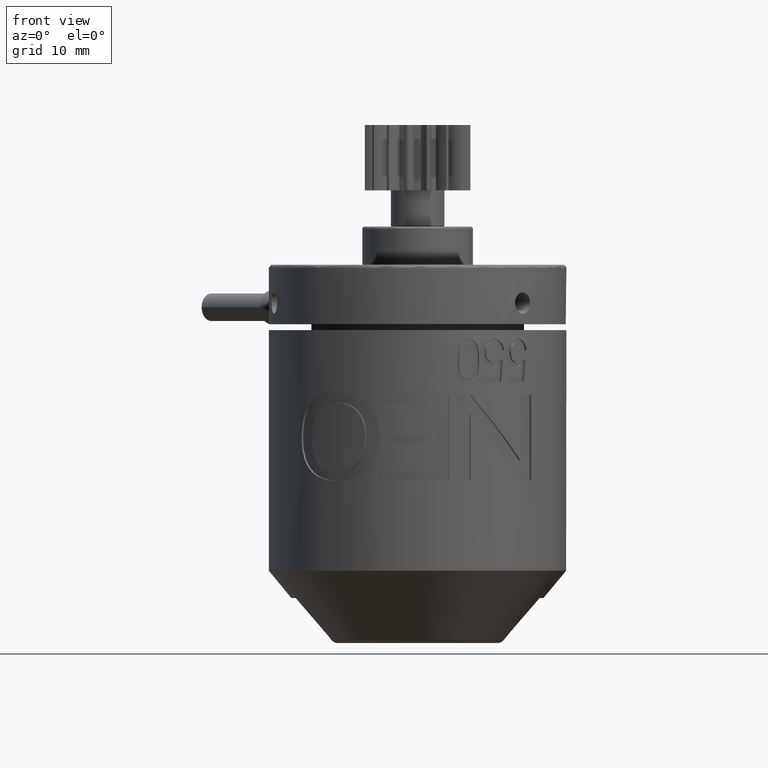
[diagram: clean part render]
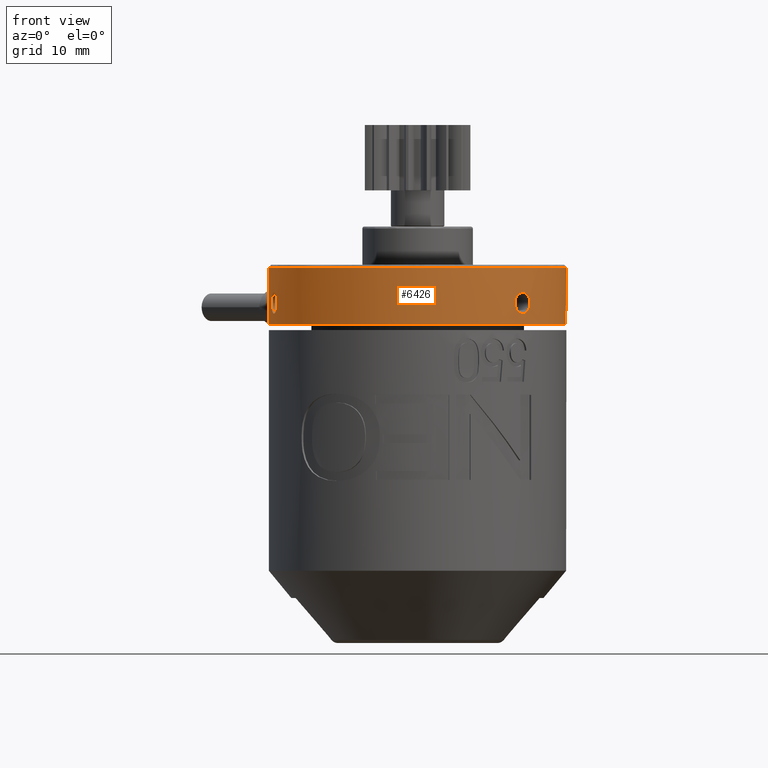
[diagram: same view with one face highlighted and labeled with its STEP entity id]
A machine part, front view. The second image highlights one B-rep face of the part: STEP entity #6426.
In plain terms, the highlighted cylindrical surface (bore or boss wall) has radius 17.5 mm, axis along (-0, 0, -1).
Its self-contained STEP definition (entity closure, byte-faithful):
#69 = AXIS2_PLACEMENT_3D ( 'NONE', #10159, #16792, #1874 ) ;
#143 = CARTESIAN_POINT ( 'NONE',  ( 29.75967155155019839, -9.239077156569431182, -5.750112523531559994 ) ) ;
#194 = AXIS2_PLACEMENT_3D ( 'NONE', #14608, #21219, #6301 ) ;
#249 = CARTESIAN_POINT ( 'NONE',  ( 29.42191124148287784, -9.561739241251174803, -3.407706567902796913 ) ) ;
#534 = CARTESIAN_POINT ( 'NONE',  ( 10.90535322740708857, 19.46021021049977762, -3.473940224032347590 ) ) ;
#576 = AXIS2_PLACEMENT_3D ( 'NONE', #2335, #9005, #15642 ) ;
#581 = EDGE_CURVE ( 'NONE', #11204, #11204, #20568, .T. ) ;
#648 = CARTESIAN_POINT ( 'NONE',  ( 11.40230905768526704, 19.65339918296087163, -5.907563715008980587 ) ) ;
#702 = CARTESIAN_POINT ( 'NONE',  ( 20.96575998387172390, 20.40349705254295998, -5.130010636494318987 ) ) ;
#743 = CARTESIAN_POINT ( 'NONE',  ( 1.042443931795246526, 9.199771602442933016, -5.541207937972690623 ) ) ;
#817 = CARTESIAN_POINT ( 'NONE',  ( 23.22517167469573707, 19.78700121833647430, -4.665199631201637054 ) ) ;
#858 = CARTESIAN_POINT ( 'NONE',  ( 1.420500750574180238, 10.15747075664702948, -3.254995811129300698 ) ) ;
#907 = CARTESIAN_POINT ( 'NONE',  ( 0.3647187673251278128, -0.3060938362238062593, -5.267916720171465172 ) ) ;
#920 = CARTESIAN_POINT ( 'NONE',  ( 21.05609471279163003, 20.38528105043006988, -3.732082164241278477 ) ) ;
#1019 = CARTESIAN_POINT ( 'NONE',  ( 0.6829943015972657072, -1.593681151173534927, -3.282215623313603725 ) ) ;
#1331 = ORIENTED_EDGE ( 'NONE', *, *, #11722, .F. ) ;
#1758 = EDGE_CURVE ( 'NONE', #7910, #7910, #4920, .T. ) ;
#1770 = CARTESIAN_POINT ( 'NONE',  ( 30.31173971722515503, -8.671910731905871472, -5.592293059963782120 ) ) ;
#1863 = CARTESIAN_POINT ( 'NONE',  ( 29.07818532565994829, -9.872483681772864728, -3.869988015525669844 ) ) ;
#1874 = DIRECTION ( 'NONE',  ( -1.000000000000000000, -2.230358754827323618E-16, 0.0000000000000000000 ) ) ;
#1973 = CARTESIAN_POINT ( 'NONE',  ( 30.72664451281534781, -8.208877559849039329, -4.334797721683901095 ) ) ;
#2154 = CARTESIAN_POINT ( 'NONE',  ( 10.47782063515877304, 19.27982430303985595, -3.194253470927208571 ) ) ;
#2195 = FACE_BOUND ( 'NONE', #21114, .T. ) ;
#2257 = CARTESIAN_POINT ( 'NONE',  ( 11.60911796059199474, 19.72872610522296810, -5.267142602745238378 ) ) ;
#2314 = CARTESIAN_POINT ( 'NONE',  ( 20.81035680927688247, 20.43404893484868268, -4.499999999999485745 ) ) ;
#2335 = CARTESIAN_POINT ( 'NONE',  ( 17.49999999999999645, 3.249999999999994227, -2.999999999999999112 ) ) ;
#2360 = CARTESIAN_POINT ( 'NONE',  ( 1.122913862445764410, 9.418283475755121259, -6.031102598711562734 ) ) ;
#2365 = CARTESIAN_POINT ( 'NONE',  ( 9.887472395253810831, 19.00808461894056478, -6.987188363550425052 ) ) ;
#2418 = CARTESIAN_POINT ( 'NONE',  ( 22.98797301592620812, 19.86763576659911124, -5.267916720171466061 ) ) ;
#2460 = CARTESIAN_POINT ( 'NONE',  ( 1.213352521166271014, 9.653553268101068952, -3.657715121989435936 ) ) ;
#2499 = EDGE_CURVE ( 'NONE', #21525, #7923, #17561, .T. ) ;
#2513 = CARTESIAN_POINT ( 'NONE',  ( 0.5142051793633858336, -0.9637515487206038678, -5.717784300675830877 ) ) ;
#2519 = CARTESIAN_POINT ( 'NONE',  ( 0.9629986779076183945, -2.475171374999612706, -4.499999999999487521 ) ) ;
#2527 = CARTESIAN_POINT ( 'NONE',  ( 21.71375192445307434, 20.23579472599121232, -3.282215623313604613 ) ) ;
#2614 = CARTESIAN_POINT ( 'NONE',  ( 0.5136416937290486651, -0.9614441141478743402, -3.282986355613572105 ) ) ;
#3333 = VERTEX_POINT ( 'NONE', #9990 ) ;
#3395 = CARTESIAN_POINT ( 'NONE',  ( 30.62248421930776132, -8.328184715724011866, -5.130010636494315435 ) ) ;
#3451 = EDGE_CURVE ( 'NONE', #11860, #4805, #12776, .T. ) ;
#3491 = CARTESIAN_POINT ( 'NONE',  ( 28.95887732014566041, -9.976644720481894879, -4.665199631201637054 ) ) ;
#3598 = CARTESIAN_POINT ( 'NONE',  ( 30.56154133426267805, -8.397308884756181868, -3.732082164241277589 ) ) ;
#3783 = CARTESIAN_POINT ( 'NONE',  ( 9.641747173435119223, 18.88642742169018618, -3.000000000488677543 ) ) ;
#3822 = FACE_OUTER_BOUND ( 'NONE', #14099, .T. ) ;
#3888 = CARTESIAN_POINT ( 'NONE',  ( 11.60774203024416451, 19.72823503525749445, -4.723569708079573992 ) ) ;
#3932 = ORIENTED_EDGE ( 'NONE', *, *, #2499, .T. ) ;
#3983 = CARTESIAN_POINT ( 'NONE',  ( 1.289789790431496774, 9.844646774882695794, -6.526059776696692794 ) ) ;
#3989 = CARTESIAN_POINT ( 'NONE',  ( 10.47869208172873101, 19.28020089345562837, -6.805277727392644138 ) ) ;
#4038 = DIRECTION ( 'NONE',  ( -1.000000000000000000, -2.230358754827323618E-16, 0.0000000000000000000 ) ) ;
#4051 = CARTESIAN_POINT ( 'NONE',  ( 22.34368152389008344, 20.06700559250177562, -5.717784300675828213 ) ) ;
#4097 = CARTESIAN_POINT ( 'NONE',  ( 1.096600817821198781, 9.347690944418802772, -4.092436284583154560 ) ) ;
#4143 = CARTESIAN_POINT ( 'NONE',  ( 0.6836602393483403040, -1.595961941223115632, -5.717013564756991073 ) ) ;
#4155 = CARTESIAN_POINT ( 'NONE',  ( 22.34596156366481523, 20.06633986808943604, -3.282986355613572105 ) ) ;
#4249 = CARTESIAN_POINT ( 'NONE',  ( 0.3649068953869024634, -0.3069517444518011784, -3.731365305807282429 ) ) ;
#4351 = CARTESIAN_POINT ( 'NONE',  ( 0.9629986779076183945, -2.475171374999612706, -4.499999999999487521 ) ) ;
#4512 = CARTESIAN_POINT ( 'NONE',  ( 9.641747173435119223, 18.88642742169018618, -3.000000000488677543 ) ) ;
#4805 = VERTEX_POINT ( 'NONE', #18336 ) ;
#4920 = CIRCLE ( 'NONE', #69, 17.49999999999999645 ) ;
#5015 = CARTESIAN_POINT ( 'NONE',  ( 30.72664451281538334, -8.208877559848986039, -4.499999999999485745 ) ) ;
#5078 = EDGE_CURVE ( 'NONE', #6369, #6369, #7901, .T. ) ;
#5130 = CARTESIAN_POINT ( 'NONE',  ( 29.14730821674856642, -9.811541930375215159, -5.267916720171467837 ) ) ;
#5222 = CARTESIAN_POINT ( 'NONE',  ( 30.10325377394955737, -8.892113574817614108, -3.282215623313603725 ) ) ;
#5513 = CARTESIAN_POINT ( 'NONE',  ( 11.39936441152563695, 19.65230500521685286, -4.086915064967548084 ) ) ;
#5617 = CARTESIAN_POINT ( 'NONE',  ( 1.470175698032514688, 10.27217936729020664, -6.805746529947040990 ) ) ;
#5622 = CARTESIAN_POINT ( 'NONE',  ( 10.90724549344755623, 19.46098296136088024, -6.524523823626787511 ) ) ;
#5677 = CARTESIAN_POINT ( 'NONE',  ( 21.71144373345390832, 20.23635840200625324, -5.717013564756993738 ) ) ;
#5721 = CARTESIAN_POINT ( 'NONE',  ( 1.021273895506597862, 9.140882041448890050, -4.732857397143126477 ) ) ;
#5778 = CARTESIAN_POINT ( 'NONE',  ( 0.8820984764428116964, -2.237136810574798407, -5.268633604896452383 ) ) ;
#5793 = CARTESIAN_POINT ( 'NONE',  ( 22.98713598157576143, 19.86790179703244874, -3.731365305807285537 ) ) ;
#5838 = CARTESIAN_POINT ( 'NONE',  ( 1.741915382336845397, 10.86252760739150780, -3.012811635482394834 ) ) ;
#5879 = CARTESIAN_POINT ( 'NONE',  ( 0.3159511251450038971, -0.06035712070390700928, -4.334795581620793037 ) ) ;
#5891 = CARTESIAN_POINT ( 'NONE',  ( 20.81035680927688247, 20.43404893484868268, -4.499999999999485745 ) ) ;
#5988 = CARTESIAN_POINT ( 'NONE',  ( 0.9116820303563570871, -2.325093710212950526, -3.869572193597564880 ) ) ;
#6301 = DIRECTION ( 'NONE',  ( -1.000000000000000000, -2.230358754827323618E-16, 0.0000000000000000000 ) ) ;
#6358 = B_SPLINE_CURVE_WITH_KNOTS ( 'NONE', 3,
 ( #2519, #9184, #15824, #20702, #5778, #12472, #19095, #4143, #10821, #17444, #2513, #9177, #15816, #907, #7524, #14208, #20811, #5879, #12572, #19204, #4249, #10930, #17541, #2614, #9287, #15923, #1019, #7632, #14309, #20916, #5988, #12683, #19301, #4351 ),
 .UNSPECIFIED., .T., .F.,
 ( 4, 2, 2, 2, 2, 2, 2, 2, 2, 2, 2, 2, 2, 2, 2, 2, 4 ),
 ( 0.0000000000000000000, 0.0004885602655183141204, 0.0009771205310366282409, 0.001465680796554942253, 0.001954241062073256482, 0.002442801327591570711, 0.002931361593109884506, 0.003419921858628198735, 0.003908482124146512963, 0.004397042389664826759, 0.004885602655183141421, 0.005374162920701455216, 0.005862723186219769012, 0.006351283451738082807, 0.006839843717256395735, 0.007328403982774709530, 0.007816964248293020723 ),
 .UNSPECIFIED. ) ;
#6369 = VERTEX_POINT ( 'NONE', #13071 ) ;
#6426 = ADVANCED_FACE ( 'NONE', ( #3822, #10488, #17122, #2195, #8851 ), #15498, .T. ) ;
#6749 = CARTESIAN_POINT ( 'NONE',  ( 29.64211329674641604, -9.353254043781102922, -5.717784300675829101 ) ) ;
#6836 = ORIENTED_EDGE ( 'NONE', *, *, #12288, .F. ) ;
#6859 = CARTESIAN_POINT ( 'NONE',  ( 29.64039674260603618, -9.354895753941466552, -3.282986355613571661 ) ) ;
#7153 = CARTESIAN_POINT ( 'NONE',  ( 11.09363522512589206, 19.53553872290116900, -3.654727470095650688 ) ) ;
#7255 = CARTESIAN_POINT ( 'NONE',  ( 1.863572579003259344, 11.10825282794471214, -6.999999999999995559 ) ) ;
#7260 = CARTESIAN_POINT ( 'NONE',  ( 11.33516032643771432, 19.62838226945629927, -6.025545502155107869 ) ) ;
#7305 = EDGE_LOOP ( 'NONE', ( #18575 ) ) ;
#7314 = CARTESIAN_POINT ( 'NONE',  ( 21.05695088977994445, 20.38509328227607753, -5.268633604896450606 ) ) ;
#7359 = CARTESIAN_POINT ( 'NONE',  ( 1.021764965473284326, 9.142257971799583771, -5.276430292054326010 ) ) ;
#7419 = CARTESIAN_POINT ( 'NONE',  ( 23.22517107529905545, 19.78700142584983013, -4.334795581620793037 ) ) ;
#7469 = CARTESIAN_POINT ( 'NONE',  ( 1.469799107606960753, 10.27130792069826981, -3.194722271743914543 ) ) ;
#7524 = CARTESIAN_POINT ( 'NONE',  ( 0.3465482123739583864, -0.2159853851832008176, -5.130426408440898811 ) ) ;
#7537 = CARTESIAN_POINT ( 'NONE',  ( 20.96598620329841012, 20.40345162287178482, -3.869572193597565768 ) ) ;
#7632 = CARTESIAN_POINT ( 'NONE',  ( 0.7693260020283595457, -1.883953187158941889, -3.407327427867416603 ) ) ;
#7901 = B_SPLINE_CURVE_WITH_KNOTS ( 'NONE', 3,
 ( #2314, #8981, #15621, #702, #7314, #14001, #20606, #5677, #12366, #18997, #4051, #10726, #17356, #2418, #9083, #15725, #817, #7419, #14107, #20716, #5793, #12486, #19110, #4155, #10835, #17460, #2527, #9193, #15831, #920, #7537, #14219, #20823, #5891 ),
 .UNSPECIFIED., .T., .F.,
 ( 4, 2, 2, 2, 2, 2, 2, 2, 2, 2, 2, 2, 2, 2, 2, 2, 4 ),
 ( 0.0000000000000000000, 0.0004885602655183139036, 0.0009771205310366278072, 0.001465680796554941819, 0.001954241062073255614, 0.002442801327591569410, 0.002931361593109883638, 0.003419921858628197434, 0.003908482124146511229, 0.004397042389664825024, 0.004885602655183137952, 0.005374162920701450880, 0.005862723186219764675, 0.006351283451738076735, 0.006839843717256390530, 0.007328403982774702591, 0.007816964248293015519 ),
 .UNSPECIFIED. ) ;
#7910 = VERTEX_POINT ( 'NONE', #14580 ) ;
#7923 = VERTEX_POINT ( 'NONE', #16908 ) ;
#8401 = CARTESIAN_POINT ( 'NONE',  ( 30.10489602719763624, -8.890396460783051680, -5.717013564756992849 ) ) ;
#8507 = CARTESIAN_POINT ( 'NONE',  ( 29.14795712303723718, -9.810950052580558634, -3.731365305807285093 ) ) ;
#8620 = CARTESIAN_POINT ( 'NONE',  ( 30.72664451281538334, -8.208877559848986039, -4.499999999999485745 ) ) ;
#8807 = CARTESIAN_POINT ( 'NONE',  ( 10.58940801025305234, 19.32815637639956918, -3.253247137679780909 ) ) ;
#8851 = FACE_BOUND ( 'NONE', #12640, .T. ) ;
#8915 = CARTESIAN_POINT ( 'NONE',  ( 11.55248981746314030, 19.70837257695295364, -5.533568302195941868 ) ) ;
#8981 = CARTESIAN_POINT ( 'NONE',  ( 20.81035680927681497, 20.43404893484868978, -4.665202278315072171 ) ) ;
#9005 = DIRECTION ( 'NONE',  ( 4.139648849035764628E-31, -8.326672684688676518E-17, 1.000000000000000000 ) ) ;
#9025 = CARTESIAN_POINT ( 'NONE',  ( 1.097694995569669540, 9.350635590589250867, -5.913084935461500713 ) ) ;
#9030 = CARTESIAN_POINT ( 'NONE',  ( 9.764174806728419753, 18.94795473027671662, -6.999999999022637809 ) ) ;
#9083 = CARTESIAN_POINT ( 'NONE',  ( 23.07509450109862570, 19.83831770326737498, -5.130426408440897035 ) ) ;
#9130 = CARTESIAN_POINT ( 'NONE',  ( 1.289017039562986078, 9.842754508824794968, -3.475476175659064637 ) ) ;
#9177 = CARTESIAN_POINT ( 'NONE',  ( 0.4438345414886361029, -0.6692024258763094036, -5.592672194959665610 ) ) ;
#9184 = CARTESIAN_POINT ( 'NONE',  ( 0.9629986779076403769, -2.475171374999676210, -4.665202278315072171 ) ) ;
#9193 = CARTESIAN_POINT ( 'NONE',  ( 21.41920311706594049, 20.30616529825868710, -3.407327427867417047 ) ) ;
#9287 = CARTESIAN_POINT ( 'NONE',  ( 0.5538741104497997281, -1.120973809796711240, -3.250113121678037675 ) ) ;
#9629 = EDGE_CURVE ( 'NONE', #3333, #3333, #6358, .T. ) ;
#9982 = AXIS2_PLACEMENT_3D ( 'NONE', #12354, #18983, #4038 ) ;
#9990 = CARTESIAN_POINT ( 'NONE',  ( 0.9629986779076185055, -2.475171374999612706, -4.499999999999486633 ) ) ;
#10044 = CARTESIAN_POINT ( 'NONE',  ( 30.56095063377713217, -8.397956471701199632, -5.268633604896450606 ) ) ;
#10146 = CARTESIAN_POINT ( 'NONE',  ( 28.95887779955585017, -9.976644305145825342, -4.334795581620792149 ) ) ;
#10159 = CARTESIAN_POINT ( 'NONE',  ( 17.49999999999999645, 3.249999999999993783, -0.3535533905932690679 ) ) ;
#10248 = CARTESIAN_POINT ( 'NONE',  ( 30.62233176634512688, -8.328357912658765017, -3.869572193597563992 ) ) ;
#10441 = CARTESIAN_POINT ( 'NONE',  ( 9.886489389529346639, 19.00942522413651403, -3.000000000977359083 ) ) ;
#10488 = FACE_OUTER_BOUND ( 'NONE', #7305, .T. ) ;
#10556 = CARTESIAN_POINT ( 'NONE',  ( 11.62266463254555404, 19.73353509034042830, -4.860710326092928746 ) ) ;
#10657 = CARTESIAN_POINT ( 'NONE',  ( 1.214461277973087672, 9.656364777097202534, -6.345272530544097123 ) ) ;
#10664 = CARTESIAN_POINT ( 'NONE',  ( 10.24694492020956282, 19.17668507810870793, -6.901431394575862299 ) ) ;
#10726 = CARTESIAN_POINT ( 'NONE',  ( 22.63395386587304969, 19.98067379115968478, -5.592672194959664722 ) ) ;
#10770 = CARTESIAN_POINT ( 'NONE',  ( 1.121617731343688140, 9.414839675688092768, -3.974454497380345952 ) ) ;
#10821 = CARTESIAN_POINT ( 'NONE',  ( 0.6387376299930684898, -1.437688776403760471, -5.749886878185922257 ) ) ;
#10835 = CARTESIAN_POINT ( 'NONE',  ( 22.18768858621453433, 20.11126242097803285, -3.250113121678036787 ) ) ;
#10930 = CARTESIAN_POINT ( 'NONE',  ( 0.4133140993608818148, -0.5326559913661720325, -3.500832285962233836 ) ) ;
#11204 = VERTEX_POINT ( 'NONE', #17813 ) ;
#11701 = CARTESIAN_POINT ( 'NONE',  ( 30.72664451281542597, -8.208877559848932748, -4.665202278315071283 ) ) ;
#11722 = EDGE_CURVE ( 'NONE', #4805, #7923, #17330, .T. ) ;
#11730 = ORIENTED_EDGE ( 'NONE', *, *, #581, .T. ) ;
#11809 = CARTESIAN_POINT ( 'NONE',  ( 29.07835728652733920, -9.872332318084096059, -5.130426408440899699 ) ) ;
#11860 = VERTEX_POINT ( 'NONE', #12751 ) ;
#11913 = CARTESIAN_POINT ( 'NONE',  ( 30.31147088090558128, -8.672212111099669940, -3.407327427867417935 ) ) ;
#11920 = ORIENTED_EDGE ( 'NONE', *, *, #5078, .T. ) ;
#12207 = CARTESIAN_POINT ( 'NONE',  ( 11.50822218464642610, 19.69238312042869410, -4.331573334976143386 ) ) ;
#12288 = EDGE_CURVE ( 'NONE', #21525, #11860, #14227, .T. ) ;
#12306 = CARTESIAN_POINT ( 'NONE',  ( 1.421843624634852032, 10.16059199215449205, -6.746752863163738567 ) ) ;
#12311 = CARTESIAN_POINT ( 'NONE',  ( 10.80623426056095049, 19.41963044078991629, -6.604798466248639421 ) ) ;
#12354 = CARTESIAN_POINT ( 'NONE',  ( 17.49999999999999645, 3.249999999999997780, -44.50000000000000000 ) ) ;
#12366 = CARTESIAN_POINT ( 'NONE',  ( 21.87097361960245934, 20.19612594050252596, -5.749886878185920480 ) ) ;
#12419 = CARTESIAN_POINT ( 'NONE',  ( 1.041627423790413509, 9.197510184594021254, -4.466431697571861648 ) ) ;
#12472 = CARTESIAN_POINT ( 'NONE',  ( 0.8111681882515108244, -2.017467530396453768, -5.499167133253936690 ) ) ;
#12486 = CARTESIAN_POINT ( 'NONE',  ( 22.76746676801887759, 19.93883205212198817, -3.500832285962232060 ) ) ;
#12527 = CARTESIAN_POINT ( 'NONE',  ( 1.802045271060354059, 10.98582519598593699, -3.000000000000036415 ) ) ;
#12572 = CARTESIAN_POINT ( 'NONE',  ( 0.3220418631762754225, -0.09241045702853116495, -4.172693192333801093 ) ) ;
#12640 = EDGE_LOOP ( 'NONE', ( #16780 ) ) ;
#12683 = CARTESIAN_POINT ( 'NONE',  ( 0.9522208356733653511, -2.444292552050298717, -4.172366906552196220 ) ) ;
#12751 = CARTESIAN_POINT ( 'NONE',  ( 9.641747174814955912, 18.88642742238364036, -6.999999999511317128 ) ) ;
#12776 = CIRCLE ( 'NONE', #194, 17.49999999999999645 ) ;
#13071 = CARTESIAN_POINT ( 'NONE',  ( 20.81035680927688603, 20.43404893484867912, -4.499999999999486633 ) ) ;
#13438 = CARTESIAN_POINT ( 'NONE',  ( 29.42221159263821306, -9.561471365283294332, -5.592672194959659393 ) ) ;
#13546 = CARTESIAN_POINT ( 'NONE',  ( 29.75843730333556536, -9.240288611181236789, -3.250113121678038119 ) ) ;
#13757 = ORIENTED_EDGE ( 'NONE', *, *, #3451, .F. ) ;
#13842 = CARTESIAN_POINT ( 'NONE',  ( 11.17911344802129925, 19.56879482655364555, -3.753589084533122566 ) ) ;
#13934 = CARTESIAN_POINT ( 'NONE',  ( 1.740574777151342456, 10.86351061314088184, -6.999999999999989342 ) ) ;
#13939 = CARTESIAN_POINT ( 'NONE',  ( 11.18274412364075587, 19.57020012615571503, -6.241954998365562446 ) ) ;
#14001 = CARTESIAN_POINT ( 'NONE',  ( 21.28265521094106916, 20.33668607365832415, -5.499167133253934914 ) ) ;
#14044 = CARTESIAN_POINT ( 'NONE',  ( 1.016464910386485121, 9.127335369493145834, -5.139289673980818485 ) ) ;
#14099 = EDGE_LOOP ( 'NONE', ( #13757, #6836, #3932, #1331 ) ) ;
#14107 = CARTESIAN_POINT ( 'NONE',  ( 23.19436670275024426, 19.79775336014926168, -4.172693192333801093 ) ) ;
#14155 = CARTESIAN_POINT ( 'NONE',  ( 1.573314923035129320, 10.50305508230313833, -3.098568604507131230 ) ) ;
#14208 = CARTESIAN_POINT ( 'NONE',  ( 0.3220564900639918959, -0.09248705160722536789, -4.827631201041491238 ) ) ;
#14219 = CARTESIAN_POINT ( 'NONE',  ( 20.84248757550707865, 20.42794340854686297, -4.172366906552197108 ) ) ;
#14227 = B_SPLINE_CURVE_WITH_KNOTS ( 'NONE', 3,
 ( #3783, #10441, #17079, #2154, #8807, #15456, #534, #7153, #13842, #20449, #5513, #12207, #18824, #3888, #10556, #17183, #2257, #8915, #15568, #648, #7260, #13939, #20549, #5622, #12311, #18929, #3989, #10664, #17297, #2365, #9030, #15665 ),
 .UNSPECIFIED., .F., .F.,
 ( 4, 2, 2, 2, 2, 2, 2, 2, 2, 2, 2, 2, 2, 2, 2, 4 ),
 ( 0.0000000000000000000, 0.0008099440013513394465, 0.001214916002027007164, 0.001619888002702674990, 0.002024860003378342599, 0.002429832004054009557, 0.002834804004729676516, 0.003239776005405343474, 0.003644748006081009999, 0.004049720006756676524, 0.004454692007432344350, 0.004859664008108010441, 0.005264636008783677400, 0.005669608009459344358, 0.006074580010135011317, 0.006479552010810678275 ),
 .UNSPECIFIED. ) ;
#14309 = CARTESIAN_POINT ( 'NONE',  ( 0.8105291541969786850, -2.015475208436908972, -3.498903749438486255 ) ) ;
#14580 = CARTESIAN_POINT ( 'NONE',  ( 0.0000000000000000000, 3.249999999999989786, -0.3535533905932690679 ) ) ;
#14608 = CARTESIAN_POINT ( 'NONE',  ( 17.49999999999999645, 3.249999999999994671, -6.999999999999995559 ) ) ;
#15056 = CARTESIAN_POINT ( 'NONE',  ( 29.99028875040436404, -9.008437164098676675, -5.749886878185919592 ) ) ;
#15155 = CARTESIAN_POINT ( 'NONE',  ( 29.31921913262013391, -9.656176060755731427, -3.500832285962235169 ) ) ;
#15456 = CARTESIAN_POINT ( 'NONE',  ( 10.80266285177897956, 19.41814983960043861, -3.392568602830162927 ) ) ;
#15498 = CYLINDRICAL_SURFACE ( 'NONE', #9982, 17.49999999999999645 ) ;
#15568 = CARTESIAN_POINT ( 'NONE',  ( 11.51077665326814348, 19.69331302647098880, -5.661531776785152736 ) ) ;
#15621 = CARTESIAN_POINT ( 'NONE',  ( 20.84240991361423667, 20.42795824208394606, -4.827304866256071136 ) ) ;
#15642 = DIRECTION ( 'NONE',  ( -1.000000000000000000, 3.320756368298459971E-15, 0.0000000000000000000 ) ) ;
#15660 = CARTESIAN_POINT ( 'NONE',  ( 1.057616880328634323, 9.241777817432037523, -5.668426665340081883 ) ) ;
#15665 = CARTESIAN_POINT ( 'NONE',  ( 9.641747174814955912, 18.88642742238364036, -6.999999999511317128 ) ) ;
#15725 = CARTESIAN_POINT ( 'NONE',  ( 23.19429305645544304, 19.79777899018225540, -4.827631201041488573 ) ) ;
#15773 = CARTESIAN_POINT ( 'NONE',  ( 1.330369560165324705, 9.943765741747411013, -3.395201532995260951 ) ) ;
#15816 = CARTESIAN_POINT ( 'NONE',  ( 0.4137564945903846603, -0.5346993498475384188, -5.501095676900126463 ) ) ;
#15824 = CARTESIAN_POINT ( 'NONE',  ( 0.9522468203998485370, -2.444367225990947468, -4.827304866256070248 ) ) ;
#15831 = CARTESIAN_POINT ( 'NONE',  ( 21.28470012939783373, 20.33624333240366155, -3.498903749438484478 ) ) ;
#15923 = CARTESIAN_POINT ( 'NONE',  ( 0.6382743650663628143, -1.436022121440976296, -3.249887476604473413 ) ) ;
#16676 = CARTESIAN_POINT ( 'NONE',  ( 30.40617660080729223, -8.569218543261790444, -5.499167133253933137 ) ) ;
#16779 = CARTESIAN_POINT ( 'NONE',  ( 28.98359143407337513, -9.955342903120635967, -4.172693192333802870 ) ) ;
#16780 = ORIENTED_EDGE ( 'NONE', *, *, #9629, .T. ) ;
#16792 = DIRECTION ( 'NONE',  ( -4.139648849035764628E-31, 8.326672684688676518E-17, -1.000000000000000000 ) ) ;
#16884 = CARTESIAN_POINT ( 'NONE',  ( 30.70529158881944554, -8.233650856496490533, -4.172366906552197108 ) ) ;
#16908 = CARTESIAN_POINT ( 'NONE',  ( 1.863572579003092811, 11.10825282794437818, -2.999999999999999112 ) ) ;
#17079 = CARTESIAN_POINT ( 'NONE',  ( 10.12844174870902947, 19.12372702994295182, -3.049617224191562226 ) ) ;
#17122 = FACE_BOUND ( 'NONE', #18068, .T. ) ;
#17183 = CARTESIAN_POINT ( 'NONE',  ( 11.62324836674489603, 19.73374321375605334, -5.131003459903903163 ) ) ;
#17292 = CARTESIAN_POINT ( 'NONE',  ( 1.181205174295473226, 9.570886554171332605, -6.246410916058009910 ) ) ;
#17297 = CARTESIAN_POINT ( 'NONE',  ( 10.12866675645090808, 19.12234241072382446, -6.937822903315153056 ) ) ;
#17330 = B_SPLINE_CURVE_WITH_KNOTS ( 'NONE', 3,
 ( #7255, #13934, #20543, #5617, #12306, #18924, #3983, #10657, #17292, #2360, #9025, #15660, #743, #7359, #14044, #20649, #5721, #12419, #19049, #4097, #10770, #17395, #2460, #9130, #15773, #858, #7469, #14155, #20764, #5838, #12527, #19153 ),
 .UNSPECIFIED., .F., .F.,
 ( 4, 2, 2, 2, 2, 2, 2, 2, 2, 2, 2, 2, 2, 2, 2, 4 ),
 ( 1.939479807224432123E-18, 0.0008099440017189596603, 0.001214916002578440629, 0.001619888003437921706, 0.002024860004297402566, 0.002429832005156883426, 0.002834804006016364286, 0.003239776006875845580, 0.003644748007735326440, 0.004049720008594807734, 0.004454692009454288594, 0.004859664010313769454, 0.005264636011173251182, 0.005669608012032731174, 0.006074580012892212902, 0.006479552013751693762 ),
 .UNSPECIFIED. ) ;
#17356 = CARTESIAN_POINT ( 'NONE',  ( 22.76547597005023249, 19.93947060585541919, -5.501095676900125575 ) ) ;
#17395 = CARTESIAN_POINT ( 'NONE',  ( 1.179799874686657590, 9.567255878535865676, -3.758045001063862411 ) ) ;
#17444 = CARTESIAN_POINT ( 'NONE',  ( 0.5543061368118346044, -1.122648427411069072, -5.750112523531559994 ) ) ;
#17460 = CARTESIAN_POINT ( 'NONE',  ( 21.87264861760291623, 20.19569381221633364, -3.249887476604472081 ) ) ;
#17541 = CARTESIAN_POINT ( 'NONE',  ( 0.4437527296730606197, -0.6688083761617846790, -3.407706567902795136 ) ) ;
#17561 = CIRCLE ( 'NONE', #576, 17.49999999999999645 ) ;
#17813 = CARTESIAN_POINT ( 'NONE',  ( 30.72664451281538334, -8.208877559848986039, -4.499999999999486633 ) ) ;
#18068 = EDGE_LOOP ( 'NONE', ( #11920 ) ) ;
#18306 = CARTESIAN_POINT ( 'NONE',  ( 30.70534326598580321, -8.233591016092919546, -4.827304866256070248 ) ) ;
#18336 = CARTESIAN_POINT ( 'NONE',  ( 1.863572579003259344, 11.10825282794471214, -6.999999999999995559 ) ) ;
#18405 = CARTESIAN_POINT ( 'NONE',  ( 28.98365045348046110, -9.955291938574944766, -4.827631201041491238 ) ) ;
#18520 = CARTESIAN_POINT ( 'NONE',  ( 30.40477071640508555, -8.570768123966672647, -3.498903749438486255 ) ) ;
#18575 = ORIENTED_EDGE ( 'NONE', *, *, #1758, .T. ) ;
#18824 = CARTESIAN_POINT ( 'NONE',  ( 11.55022839962104975, 19.70755606895089329, -4.458792062284612001 ) ) ;
#18924 = CARTESIAN_POINT ( 'NONE',  ( 1.331850161363603569, 9.947337150549207863, -6.607431397941171625 ) ) ;
#18929 = CARTESIAN_POINT ( 'NONE',  ( 10.59252924573831400, 19.32949925045016570, -6.745004188040131687 ) ) ;
#18983 = DIRECTION ( 'NONE',  ( -4.139648849035764628E-31, 8.326672684688676518E-17, -1.000000000000000000 ) ) ;
#18997 = CARTESIAN_POINT ( 'NONE',  ( 22.18602231163787053, 20.11172558398058996, -5.750112523531557329 ) ) ;
#19049 = CARTESIAN_POINT ( 'NONE',  ( 1.056686974282788682, 9.239223348801571589, -4.338468222923337336 ) ) ;
#19095 = CARTESIAN_POINT ( 'NONE',  ( 0.7694525859065887152, -1.884336695838042974, -5.592293059963780344 ) ) ;
#19110 = CARTESIAN_POINT ( 'NONE',  ( 22.63433602884396834, 19.98054761741305185, -3.407706567902793804 ) ) ;
#19153 = CARTESIAN_POINT ( 'NONE',  ( 1.863572579003092811, 11.10825282794437818, -2.999999999999999112 ) ) ;
#19204 = CARTESIAN_POINT ( 'NONE',  ( 0.3465031080079681303, -0.2157607808592019727, -3.869988015525668956 ) ) ;
#19301 = CARTESIAN_POINT ( 'NONE',  ( 0.9629986779075961900, -2.475171374999548757, -4.334797721683904648 ) ) ;
#20044 = CARTESIAN_POINT ( 'NONE',  ( 29.32076753535929470, -9.654771256007787628, -5.501095676900128240 ) ) ;
#20149 = CARTESIAN_POINT ( 'NONE',  ( 29.98907701733059739, -9.009671690775284958, -3.249887476604475189 ) ) ;
#20449 = CARTESIAN_POINT ( 'NONE',  ( 11.33171652638305993, 19.62708613835939175, -3.968897401774017730 ) ) ;
#20543 = CARTESIAN_POINT ( 'NONE',  ( 1.626272971252515243, 10.62155825386915708, -6.950382776758468495 ) ) ;
#20549 = CARTESIAN_POINT ( 'NONE',  ( 11.09644673410478077, 19.53664747970075410, -6.342284877389938735 ) ) ;
#20568 = B_SPLINE_CURVE_WITH_KNOTS ( 'NONE', 3,
 ( #5015, #11701, #18306, #3395, #10044, #16676, #1770, #8401, #15056, #143, #6749, #13438, #20044, #5130, #11809, #18405, #3491, #10146, #16779, #1863, #8507, #15155, #249, #6859, #13546, #20149, #5222, #11913, #18520, #3598, #10248, #16884, #1973, #8620 ),
 .UNSPECIFIED., .T., .F.,
 ( 4, 2, 2, 2, 2, 2, 2, 2, 2, 2, 2, 2, 2, 2, 2, 2, 4 ),
 ( 0.0000000000000000000, 0.0004885602655183141204, 0.0009771205310366282409, 0.001465680796554942253, 0.001954241062073256482, 0.002442801327591570711, 0.002931361593109884506, 0.003419921858628198735, 0.003908482124146512963, 0.004397042389664826759, 0.004885602655183141421, 0.005374162920701455216, 0.005862723186219769012, 0.006351283451738083674, 0.006839843717256397469, 0.007328403982774712132, 0.007816964248293025927 ),
 .UNSPECIFIED. ) ;
#20606 = CARTESIAN_POINT ( 'NONE',  ( 21.41880769686815356, 20.30624742774398328, -5.592293059963779456 ) ) ;
#20649 = CARTESIAN_POINT ( 'NONE',  ( 1.016256786970168191, 9.126751635292079001, -4.868996540047890065 ) ) ;
#20702 = CARTESIAN_POINT ( 'NONE',  ( 0.9117557968203846563, -2.325312336818866399, -5.130010636494318987 ) ) ;
#20716 = CARTESIAN_POINT ( 'NONE',  ( 23.07531156633201164, 19.83824446263216856, -3.869988015525668512 ) ) ;
#20764 = CARTESIAN_POINT ( 'NONE',  ( 1.627657590462905590, 10.62133324610549501, -3.062177095747057098 ) ) ;
#20811 = CARTESIAN_POINT ( 'NONE',  ( 0.3159510051585059376, -0.06035649785447664423, -4.665199631201636166 ) ) ;
#20823 = CARTESIAN_POINT ( 'NONE',  ( 20.81035680927694997, 20.43404893484866847, -4.334797721683901095 ) ) ;
#20916 = CARTESIAN_POINT ( 'NONE',  ( 0.8823639529455863384, -2.237972165673810743, -3.732082164241276256 ) ) ;
#21114 = EDGE_LOOP ( 'NONE', ( #11730 ) ) ;
#21219 = DIRECTION ( 'NONE',  ( -4.139648849035764628E-31, 8.326672684688676518E-17, -1.000000000000000000 ) ) ;
#21525 = VERTEX_POINT ( 'NONE', #4512 ) ;